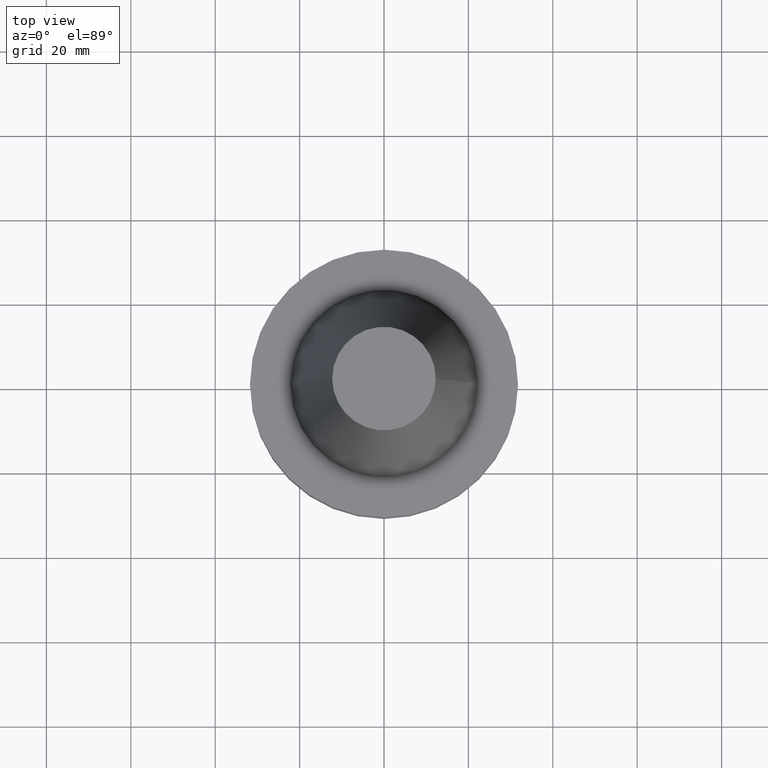
[diagram: clean part render]
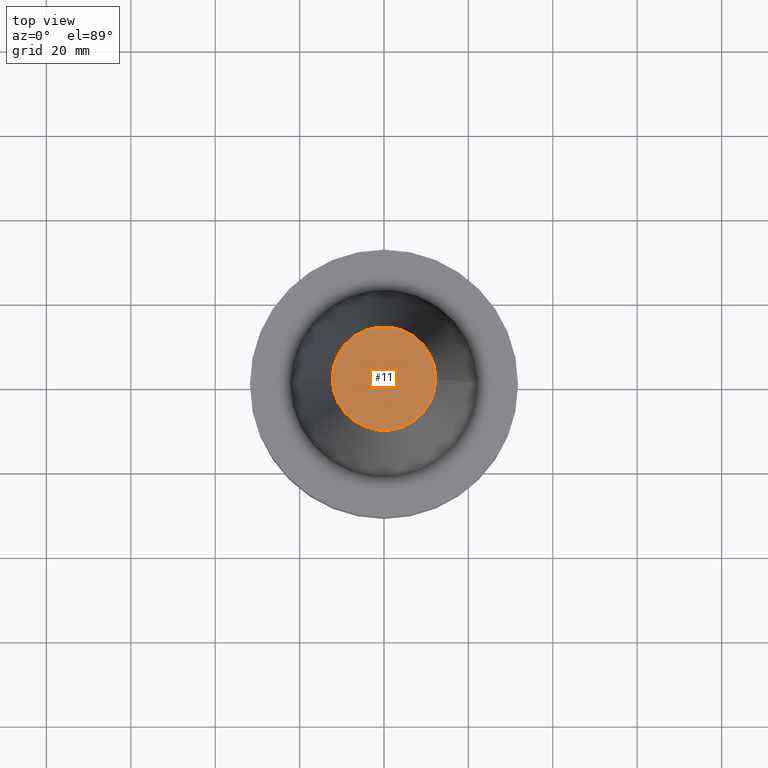
[diagram: same view with one face highlighted and labeled with its STEP entity id]
A machine part, top view. The second image highlights one B-rep face of the part: STEP entity #11.
In plain terms, the highlighted planar face has unit normal (0, 0, -1).
Its self-contained STEP definition (entity closure, byte-faithful):
#11 = ADVANCED_FACE ( 'NONE', ( #566 ), #746, .F. ) ;
#38 = CIRCLE ( 'NONE', #101, 12.27178102086201150 ) ;
#58 = ORIENTED_EDGE ( 'NONE', *, *, #605, .T. ) ;
#86 = DIRECTION ( 'NONE',  ( 1.000000000000000000, 0.000000000000000000, 0.000000000000000000 ) ) ;
#101 = AXIS2_PLACEMENT_3D ( 'NONE', #428, #440, #86 ) ;
#117 = VERTEX_POINT ( 'NONE', #430 ) ;
#158 = CARTESIAN_POINT ( 'NONE',  ( 0.000000000000000000, 12.27178102086201150, 68.25000000000000000 ) ) ;
#195 = DIRECTION ( 'NONE',  ( 1.000000000000000000, 0.000000000000000000, 0.000000000000000000 ) ) ;
#205 = DIRECTION ( 'NONE',  ( -1.000000000000000000, 0.000000000000000000, -0.000000000000000000 ) ) ;
#250 = CIRCLE ( 'NONE', #696, 12.27178102086201150 ) ;
#269 = CARTESIAN_POINT ( 'NONE',  ( -12.27178102086201150, 0.000000000000000000, 68.25000000000000000 ) ) ;
#428 = CARTESIAN_POINT ( 'NONE',  ( 0.000000000000000000, 0.000000000000000000, 68.25000000000000000 ) ) ;
#429 = EDGE_LOOP ( 'NONE', ( #550, #58 ) ) ;
#430 = CARTESIAN_POINT ( 'NONE',  ( 12.27178102086201150, 2.112318622904291439E-15, 68.25000000000000000 ) ) ;
#440 = DIRECTION ( 'NONE',  ( -0.000000000000000000, -0.000000000000000000, 1.000000000000000000 ) ) ;
#465 = AXIS2_PLACEMENT_3D ( 'NONE', #158, #690, #205 ) ;
#550 = ORIENTED_EDGE ( 'NONE', *, *, #651, .T. ) ;
#566 = FACE_OUTER_BOUND ( 'NONE', #429, .T. ) ;
#605 = EDGE_CURVE ( 'NONE', #117, #760, #250, .T. ) ;
#651 = EDGE_CURVE ( 'NONE', #760, #117, #38, .T. ) ;
#667 = CARTESIAN_POINT ( 'NONE',  ( 0.000000000000000000, 0.000000000000000000, 68.25000000000000000 ) ) ;
#678 = DIRECTION ( 'NONE',  ( -0.000000000000000000, -0.000000000000000000, 1.000000000000000000 ) ) ;
#690 = DIRECTION ( 'NONE',  ( 0.000000000000000000, 0.000000000000000000, -1.000000000000000000 ) ) ;
#696 = AXIS2_PLACEMENT_3D ( 'NONE', #667, #678, #195 ) ;
#746 = PLANE ( 'NONE',  #465 ) ;
#760 = VERTEX_POINT ( 'NONE', #269 ) ;